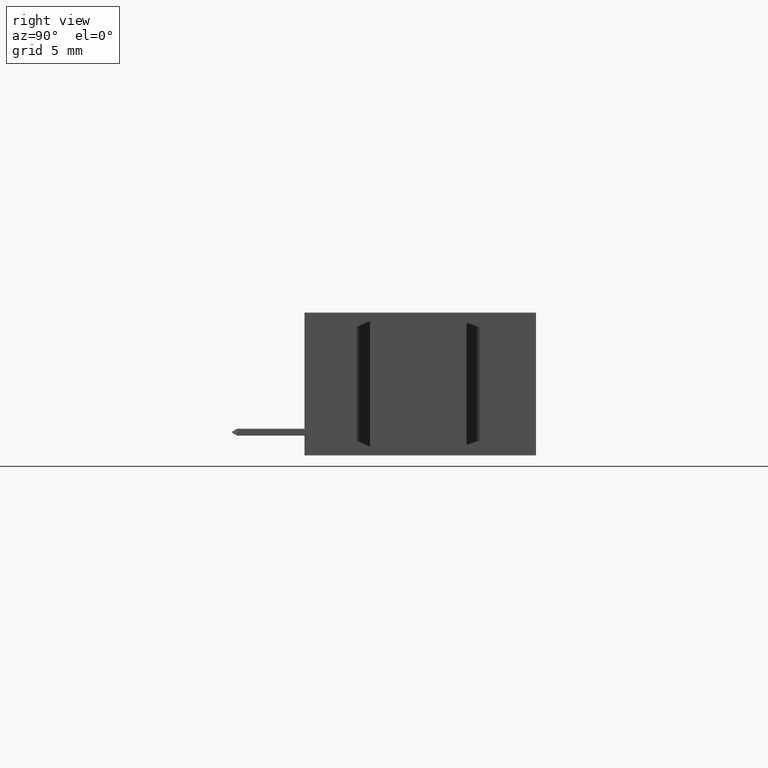
[diagram: clean part render]
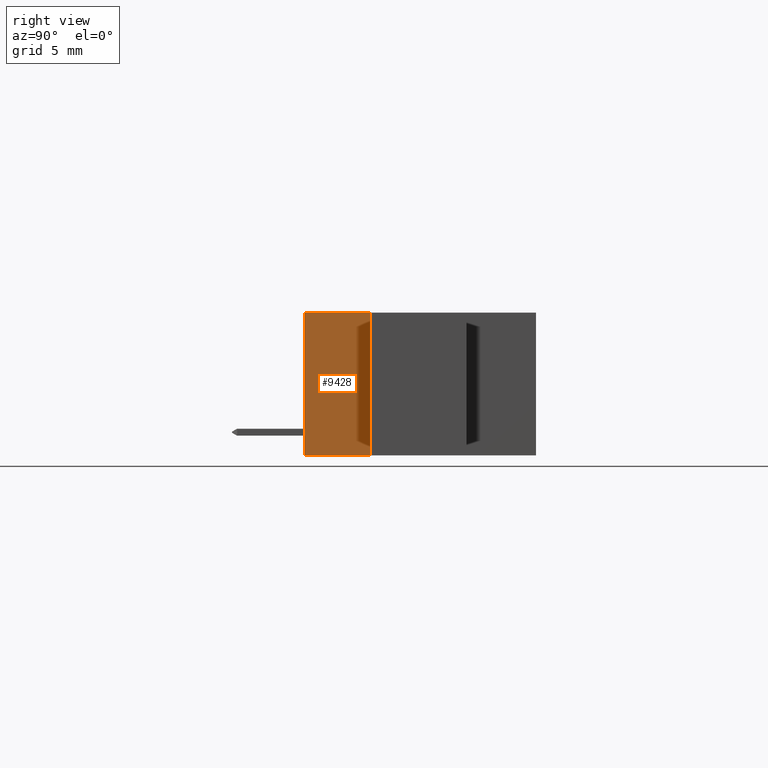
[diagram: same view with one face highlighted and labeled with its STEP entity id]
A machine part, right view. The second image highlights one B-rep face of the part: STEP entity #9428.
In plain terms, the highlighted planar face has unit normal (-1, 0, 0).
Its self-contained STEP definition (entity closure, byte-faithful):
#562 = VERTEX_POINT ( 'NONE', #6483 ) ;
#604 = CARTESIAN_POINT ( 'NONE',  ( 1.347500000000000142, 0.0000000000000000000, 1.236893267138826712E-16 ) ) ;
#1550 = FACE_OUTER_BOUND ( 'NONE', #2166, .T. ) ;
#1643 = EDGE_CURVE ( 'NONE', #10367, #6000, #4448, .T. ) ;
#1793 = CARTESIAN_POINT ( 'NONE',  ( 1.347500000000000142, 0.0000000000000000000, -0.3699999999999999956 ) ) ;
#2154 = DIRECTION ( 'NONE',  ( -0.0000000000000000000, -1.000000000000000000, -0.0000000000000000000 ) ) ;
#2166 = EDGE_LOOP ( 'NONE', ( #9846, #7209, #8363, #7825 ) ) ;
#2343 = DIRECTION ( 'NONE',  ( 0.0000000000000000000, 0.0000000000000000000, -1.000000000000000000 ) ) ;
#2354 = DIRECTION ( 'NONE',  ( 0.0000000000000000000, 0.0000000000000000000, 1.000000000000000000 ) ) ;
#3005 = CARTESIAN_POINT ( 'NONE',  ( 1.347500000000000142, 0.1699999999999999845, 1.236893267138826712E-16 ) ) ;
#4448 = LINE ( 'NONE', #4545, #7077 ) ;
#4545 = CARTESIAN_POINT ( 'NONE',  ( 1.347500000000000142, 0.1699999999999999845, -0.3699999999999999956 ) ) ;
#4735 = LINE ( 'NONE', #604, #6809 ) ;
#4764 = VECTOR ( 'NONE', #5541, 39.37007874015748143 ) ;
#4848 = EDGE_CURVE ( 'NONE', #562, #10367, #7046, .T. ) ;
#5259 = EDGE_CURVE ( 'NONE', #5923, #6000, #4735, .T. ) ;
#5541 = DIRECTION ( 'NONE',  ( -0.0000000000000000000, -1.000000000000000000, -0.0000000000000000000 ) ) ;
#5923 = VERTEX_POINT ( 'NONE', #7227 ) ;
#6000 = VERTEX_POINT ( 'NONE', #1793 ) ;
#6260 = DIRECTION ( 'NONE',  ( 0.0000000000000000000, 0.0000000000000000000, -1.000000000000000000 ) ) ;
#6274 = EDGE_CURVE ( 'NONE', #562, #5923, #6303, .T. ) ;
#6303 = LINE ( 'NONE', #7944, #4764 ) ;
#6483 = CARTESIAN_POINT ( 'NONE',  ( 1.347500000000000142, 0.1699999999999999845, 1.236893267138826712E-16 ) ) ;
#6809 = VECTOR ( 'NONE', #2343, 39.37007874015748143 ) ;
#7046 = LINE ( 'NONE', #3005, #9427 ) ;
#7077 = VECTOR ( 'NONE', #2154, 39.37007874015748143 ) ;
#7121 = CARTESIAN_POINT ( 'NONE',  ( 1.347500000000000142, 0.1699999999999999845, -0.3699999999999999956 ) ) ;
#7209 = ORIENTED_EDGE ( 'NONE', *, *, #1643, .F. ) ;
#7227 = CARTESIAN_POINT ( 'NONE',  ( 1.347500000000000142, 0.0000000000000000000, 0.0000000000000000000 ) ) ;
#7825 = ORIENTED_EDGE ( 'NONE', *, *, #6274, .T. ) ;
#7944 = CARTESIAN_POINT ( 'NONE',  ( 1.347500000000000142, 0.1699999999999999845, 1.236893267138826712E-16 ) ) ;
#7954 = DIRECTION ( 'NONE',  ( -1.000000000000000000, 0.0000000000000000000, 0.0000000000000000000 ) ) ;
#8172 = CARTESIAN_POINT ( 'NONE',  ( 1.347500000000000142, 0.1699999999999999845, 1.236893267138826712E-16 ) ) ;
#8363 = ORIENTED_EDGE ( 'NONE', *, *, #4848, .F. ) ;
#9427 = VECTOR ( 'NONE', #6260, 39.37007874015748143 ) ;
#9428 = ADVANCED_FACE ( 'NONE', ( #1550 ), #9646, .F. ) ;
#9646 = PLANE ( 'NONE',  #10170 ) ;
#9846 = ORIENTED_EDGE ( 'NONE', *, *, #5259, .T. ) ;
#10170 = AXIS2_PLACEMENT_3D ( 'NONE', #8172, #7954, #2354 ) ;
#10367 = VERTEX_POINT ( 'NONE', #7121 ) ;